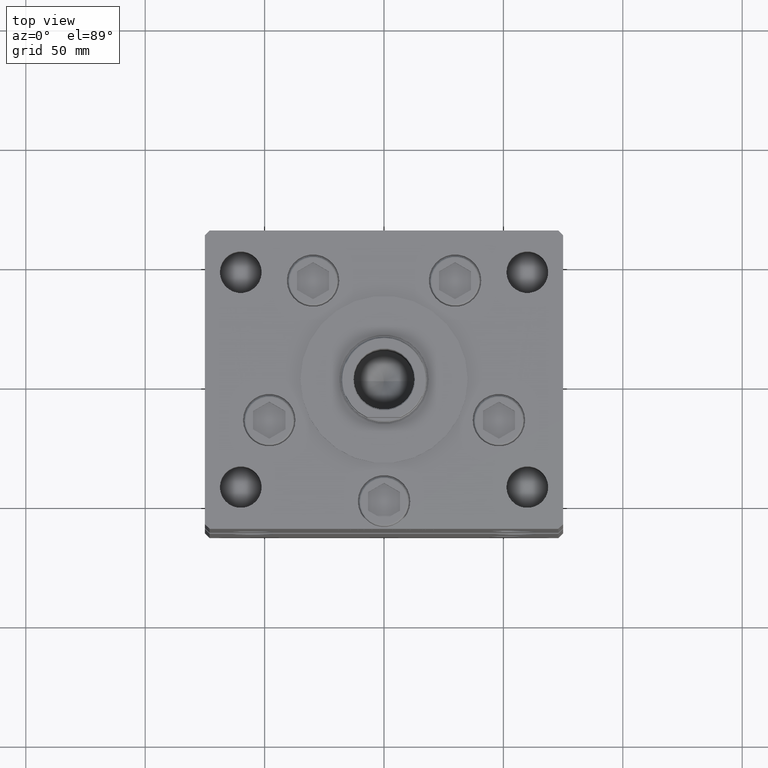
[diagram: clean part render]
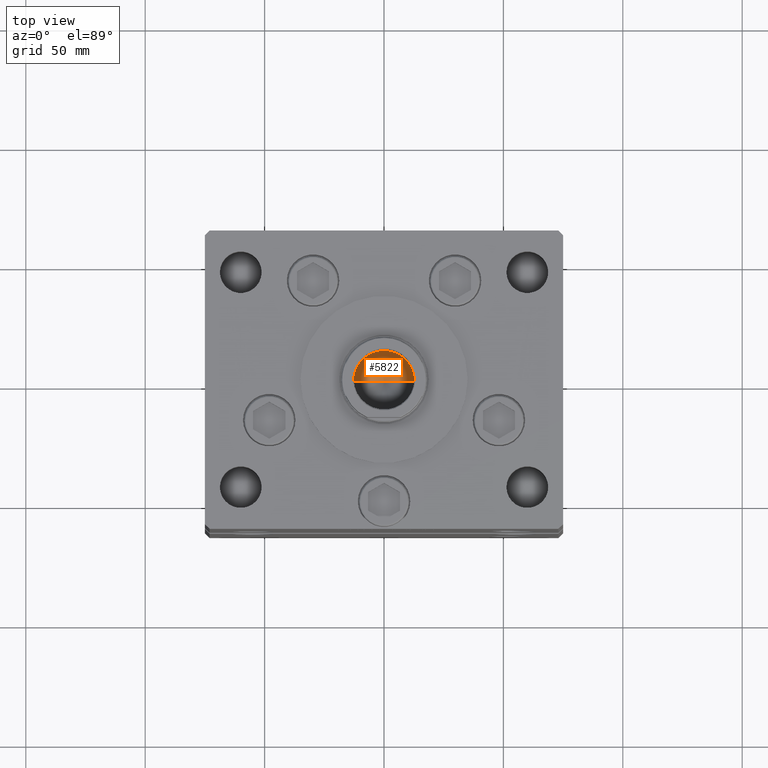
[diagram: same view with one face highlighted and labeled with its STEP entity id]
A machine part, top view. The second image highlights one B-rep face of the part: STEP entity #5822.
In plain terms, the highlighted conical surface has half-angle 59 deg.
Its self-contained STEP definition (entity closure, byte-faithful):
#128 = CARTESIAN_POINT ( 'NONE',  ( -1.307202896762960287E-14, 0.000000000000000000, 149.8390271073986071 ) ) ;
#422 = CARTESIAN_POINT ( 'NONE',  ( -12.74999999999999112, 1.561424668912874125E-15, 157.5000000000000284 ) ) ;
#3923 = DIRECTION ( 'NONE',  ( -0.8571673007021110013, 1.049727191138617093E-16, 0.5150380749100563760 ) ) ;
#5822 = ADVANCED_FACE ( 'NONE', ( #35586 ), #23729, .F. ) ;
#13845 = ORIENTED_EDGE ( 'NONE', *, *, #50238, .T. ) ;
#15212 = DIRECTION ( 'NONE',  ( -0.000000000000000000, -0.000000000000000000, 1.000000000000000000 ) ) ;
#20130 = ORIENTED_EDGE ( 'NONE', *, *, #46060, .T. ) ;
#20517 = VERTEX_POINT ( 'NONE', #43292 ) ;
#23250 = DIRECTION ( 'NONE',  ( 1.000000000000000000, 0.000000000000000000, 0.000000000000000000 ) ) ;
#23729 = CONICAL_SURFACE ( 'NONE', #51105, 12.74999999999999112, 1.029744258676651869 ) ;
#24078 = DIRECTION ( 'NONE',  ( 0.8571673007021110013, 0.000000000000000000, 0.5150380749100563760 ) ) ;
#24556 = LINE ( 'NONE', #422, #30311 ) ;
#29879 = VERTEX_POINT ( 'NONE', #128 ) ;
#30311 = VECTOR ( 'NONE', #3923, 1000.000000000000000 ) ;
#30856 = VECTOR ( 'NONE', #24078, 1000.000000000000000 ) ;
#32894 = CARTESIAN_POINT ( 'NONE',  ( 12.74999999999999112, 0.000000000000000000, 157.5000000000000284 ) ) ;
#35106 = EDGE_CURVE ( 'NONE', #29879, #20517, #24556, .T. ) ;
#35586 = FACE_OUTER_BOUND ( 'NONE', #52895, .T. ) ;
#36202 = DIRECTION ( 'NONE',  ( -0.000000000000000000, -0.000000000000000000, 1.000000000000000000 ) ) ;
#36403 = LINE ( 'NONE', #32894, #30856 ) ;
#38847 = CARTESIAN_POINT ( 'NONE',  ( 12.74999999999999112, 0.000000000000000000, 157.5000000000000284 ) ) ;
#39089 = VERTEX_POINT ( 'NONE', #38847 ) ;
#39609 = CARTESIAN_POINT ( 'NONE',  ( 0.000000000000000000, 0.000000000000000000, 157.5000000000000284 ) ) ;
#40178 = AXIS2_PLACEMENT_3D ( 'NONE', #43431, #36202, #52535 ) ;
#41296 = ORIENTED_EDGE ( 'NONE', *, *, #35106, .F. ) ;
#43292 = CARTESIAN_POINT ( 'NONE',  ( -12.74999999999999112, 1.561424668912874125E-15, 157.5000000000000284 ) ) ;
#43431 = CARTESIAN_POINT ( 'NONE',  ( 0.000000000000000000, 0.000000000000000000, 157.5000000000000284 ) ) ;
#46060 = EDGE_CURVE ( 'NONE', #39089, #20517, #53011, .T. ) ;
#50238 = EDGE_CURVE ( 'NONE', #29879, #39089, #36403, .T. ) ;
#51105 = AXIS2_PLACEMENT_3D ( 'NONE', #39609, #15212, #23250 ) ;
#52535 = DIRECTION ( 'NONE',  ( 1.000000000000000000, 0.000000000000000000, 0.000000000000000000 ) ) ;
#52895 = EDGE_LOOP ( 'NONE', ( #41296, #13845, #20130 ) ) ;
#53011 = CIRCLE ( 'NONE', #40178, 12.74999999999999112 ) ;